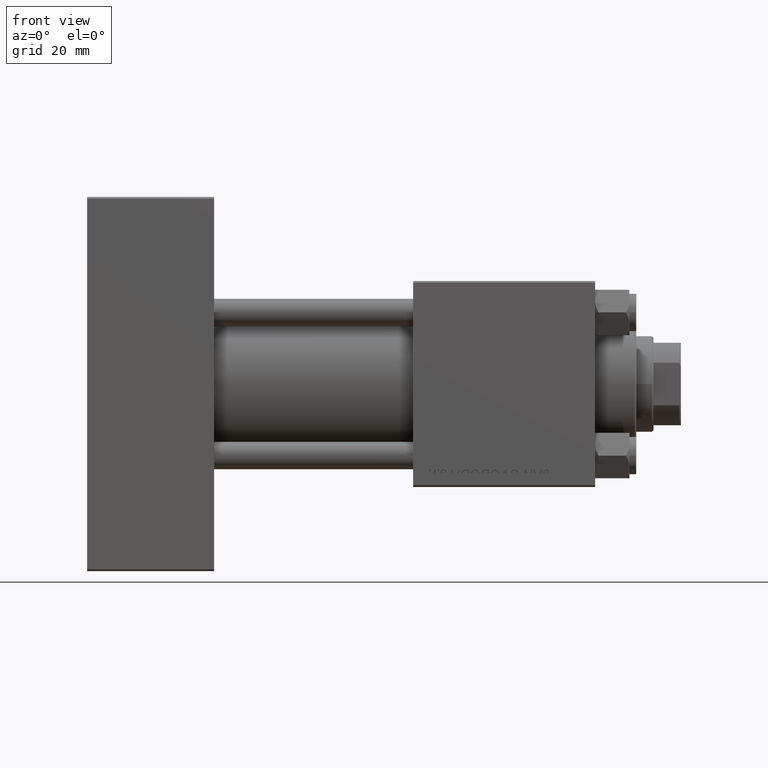
[diagram: clean part render]
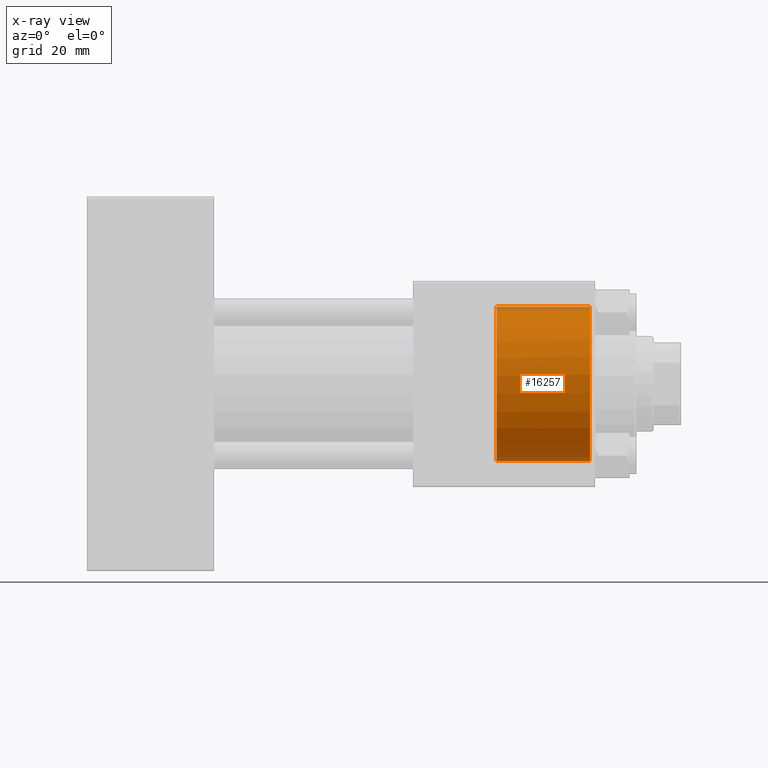
[diagram: x-ray — body ghosted, one internal face saturated and labeled with its STEP entity id]
A machine part, front view, then the same camera in x-ray: the body is ghosted and one INTERNAL B-rep face — a face not visible from any outside direction — is saturated and labeled: STEP entity #16257.
In plain terms, the highlighted cylindrical surface (partial cylindrical patch) has radius 22.5 mm, axis along (1, 0, 0).
Its self-contained STEP definition (entity closure, byte-faithful):
#549 = CARTESIAN_POINT ( 'NONE',  ( 119.2999999999999829, -0.7063285354565423946, 22.48891060056044111 ) ) ;
#1038 = EDGE_CURVE ( 'NONE', #44293, #37456, #36064, .T. ) ;
#2133 = EDGE_CURVE ( 'NONE', #15215, #3236, #47096, .T. ) ;
#3236 = VERTEX_POINT ( 'NONE', #29958 ) ;
#3267 = CARTESIAN_POINT ( 'NONE',  ( 146.5000000000000284, 2.755455298081545172E-15, 22.50000000000000355 ) ) ;
#3340 = DIRECTION ( 'NONE',  ( 0.000000000000000000, 0.000000000000000000, -1.000000000000000000 ) ) ;
#3595 = EDGE_CURVE ( 'NONE', #37456, #15215, #7139, .T. ) ;
#4320 = ORIENTED_EDGE ( 'NONE', *, *, #2133, .T. ) ;
#7139 = LINE ( 'NONE', #45062, #20516 ) ;
#8959 = CARTESIAN_POINT ( 'NONE',  ( 119.2999999999999829, 0.000000000000000000, -22.50000000000000355 ) ) ;
#9563 = DIRECTION ( 'NONE',  ( 1.000000000000000000, -0.000000000000000000, -0.000000000000000000 ) ) ;
#10979 = CARTESIAN_POINT ( 'NONE',  ( 119.2999999999999829, 0.000000000000000000, 0.000000000000000000 ) ) ;
#11430 = DIRECTION ( 'NONE',  ( 1.000000000000000000, -0.000000000000000000, -0.000000000000000000 ) ) ;
#12174 = CARTESIAN_POINT ( 'NONE',  ( 119.3300000000000125, 2.755455270027974659E-15, 22.50000000000000355 ) ) ;
#13118 = ORIENTED_EDGE ( 'NONE', *, *, #30694, .F. ) ;
#14710 = FACE_OUTER_BOUND ( 'NONE', #28007, .T. ) ;
#14850 = VERTEX_POINT ( 'NONE', #8959 ) ;
#15023 = DIRECTION ( 'NONE',  ( 0.000000000000000000, 0.000000000000000000, -1.000000000000000000 ) ) ;
#15215 = VERTEX_POINT ( 'NONE', #3267 ) ;
#16257 = ADVANCED_FACE ( 'NONE', ( #14710 ), #30144, .F. ) ;
#16285 = DIRECTION ( 'NONE',  ( 1.000000000000000000, 0.000000000000000000, 0.000000000000000000 ) ) ;
#17612 = ORIENTED_EDGE ( 'NONE', *, *, #3595, .T. ) ;
#17663 = ORIENTED_EDGE ( 'NONE', *, *, #45112, .F. ) ;
#20089 = CIRCLE ( 'NONE', #24944, 22.50000000000000355 ) ;
#20091 = CARTESIAN_POINT ( 'NONE',  ( 146.5000000000000284, 0.000000000000000000, 0.000000000000000000 ) ) ;
#20516 = VECTOR ( 'NONE', #11430, 1000.000000000000000 ) ;
#24305 = CARTESIAN_POINT ( 'NONE',  ( 119.3300000000000125, -0.2354428451521790311, 22.50000000000000355 ) ) ;
#24944 = AXIS2_PLACEMENT_3D ( 'NONE', #10979, #49665, #15023 ) ;
#25750 = LINE ( 'NONE', #44208, #32362 ) ;
#25771 = ORIENTED_EDGE ( 'NONE', *, *, #1038, .T. ) ;
#26032 = CARTESIAN_POINT ( 'NONE',  ( 119.2999999999999829, -0.7063285354565423946, 22.48891060056044111 ) ) ;
#28007 = EDGE_LOOP ( 'NONE', ( #25771, #17612, #4320, #13118, #17663 ) ) ;
#29958 = CARTESIAN_POINT ( 'NONE',  ( 146.5000000000000284, 0.000000000000000000, -22.50000000000000355 ) ) ;
#30144 = CYLINDRICAL_SURFACE ( 'NONE', #44953, 22.50000000000000355 ) ;
#30694 = EDGE_CURVE ( 'NONE', #14850, #3236, #25750, .T. ) ;
#32362 = VECTOR ( 'NONE', #9563, 1000.000000000000000 ) ;
#34194 = AXIS2_PLACEMENT_3D ( 'NONE', #20091, #16285, #40013 ) ;
#34417 = DIRECTION ( 'NONE',  ( 1.000000000000000000, -0.000000000000000000, -0.000000000000000000 ) ) ;
#36064 = B_SPLINE_CURVE_WITH_KNOTS ( 'NONE', 3,
 ( #549, #43270, #24305, #12174 ),
 .UNSPECIFIED., .F., .F.,
 ( 4, 4 ),
 ( 0.000000000000000000, 0.0007063285354565450877 ),
 .UNSPECIFIED. ) ;
#37456 = VERTEX_POINT ( 'NONE', #47683 ) ;
#40013 = DIRECTION ( 'NONE',  ( 0.000000000000000000, 0.000000000000000000, 1.000000000000000000 ) ) ;
#42007 = CARTESIAN_POINT ( 'NONE',  ( 119.2999999999999829, 0.000000000000000000, 0.000000000000000000 ) ) ;
#43270 = CARTESIAN_POINT ( 'NONE',  ( 119.3200361445783102, -0.4708856903043606712, 22.49630535626710426 ) ) ;
#44208 = CARTESIAN_POINT ( 'NONE',  ( 119.2999999999999829, 0.000000000000000000, -22.50000000000000355 ) ) ;
#44293 = VERTEX_POINT ( 'NONE', #26032 ) ;
#44953 = AXIS2_PLACEMENT_3D ( 'NONE', #42007, #34417, #3340 ) ;
#45062 = CARTESIAN_POINT ( 'NONE',  ( 119.2999999999999829, 2.755455298081545172E-15, 22.50000000000000355 ) ) ;
#45112 = EDGE_CURVE ( 'NONE', #44293, #14850, #20089, .T. ) ;
#47096 = CIRCLE ( 'NONE', #34194, 22.50000000000000355 ) ;
#47683 = CARTESIAN_POINT ( 'NONE',  ( 119.3300000000000125, 2.755455270027974659E-15, 22.50000000000000355 ) ) ;
#49665 = DIRECTION ( 'NONE',  ( 1.000000000000000000, 0.000000000000000000, 0.000000000000000000 ) ) ;